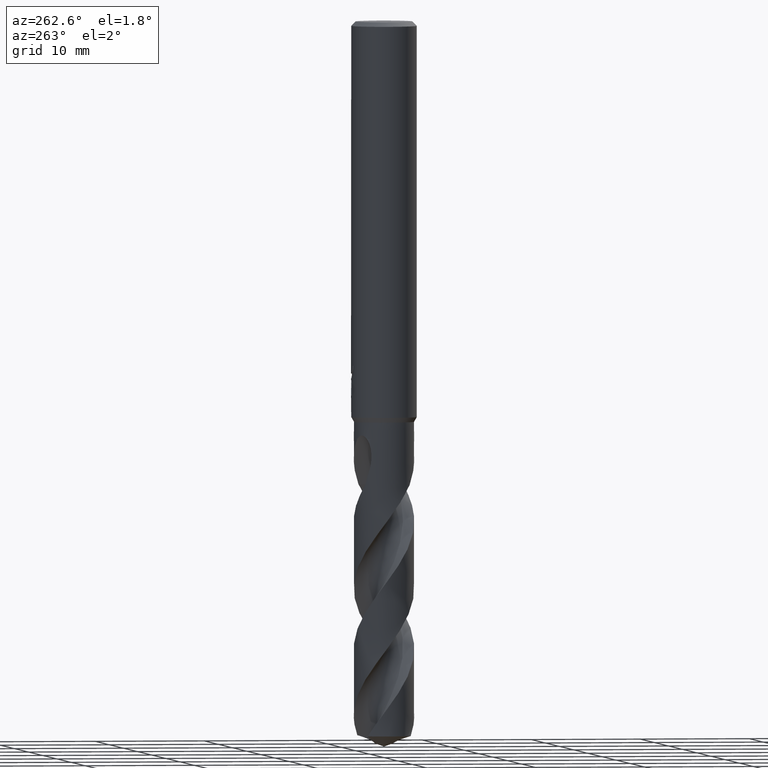
[diagram: clean part render]
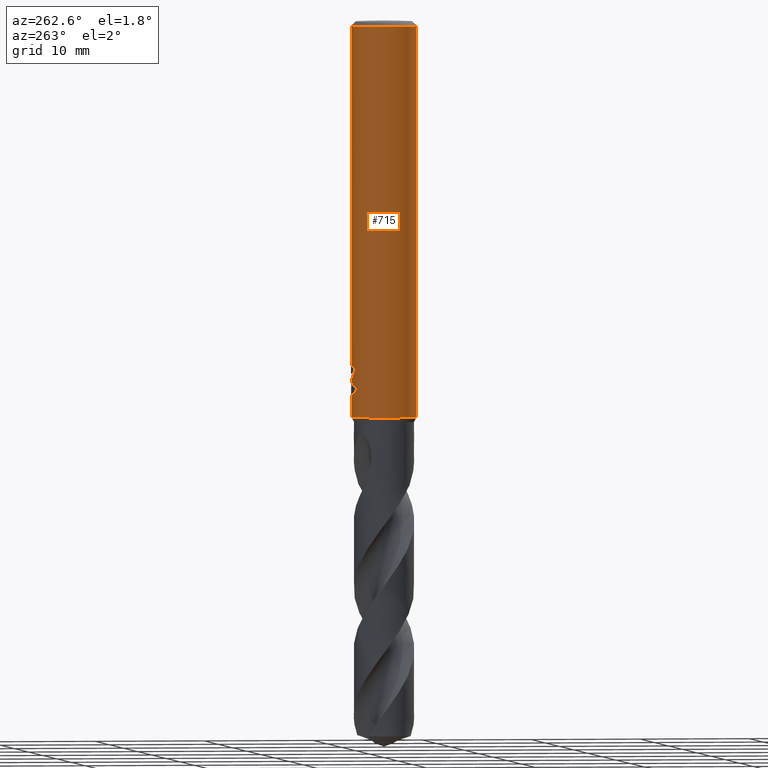
[diagram: same view with one face highlighted and labeled with its STEP entity id]
A machine part, auxiliary view. The second image highlights one B-rep face of the part: STEP entity #715.
In plain terms, the highlighted cylindrical surface (edge-blend (fillet) strip) has radius 3 mm, axis along (-0, -0, 1).
Its self-contained STEP definition (entity closure, byte-faithful):
#281=EDGE_CURVE('',#547,#325,#773,.T.);
#291=VERTEX_POINT('',#784);
#297=EDGE_CURVE('',#291,#531,#790,.T.);
#319=EDGE_CURVE('',#569,#407,#812,.T.);
#321=EDGE_CURVE('',#577,#357,#814,.T.);
#325=VERTEX_POINT('',#818);
#335=EDGE_CURVE('',#357,#547,#828,.T.);
#357=VERTEX_POINT('',#852);
#371=EDGE_CURVE('',#521,#577,#868,.T.);
#373=EDGE_CURVE('',#615,#533,#870,.T.);
#385=EDGE_CURVE('',#615,#407,#883,.T.);
#407=VERTEX_POINT('',#907);
#409=EDGE_CURVE('',#469,#521,#909,.T.);
#469=VERTEX_POINT('',#976);
#495=EDGE_CURVE('',#533,#291,#1005,.T.);
#521=VERTEX_POINT('',#1034);
#531=VERTEX_POINT('',#1047);
#533=VERTEX_POINT('',#1049);
#547=VERTEX_POINT('',#1065);
#569=VERTEX_POINT('',#1089);
#577=VERTEX_POINT('',#1097);
#615=VERTEX_POINT('',#1137);
#655=EDGE_CURVE('',#531,#469,#1182,.T.);
#685=EDGE_CURVE('',#325,#569,#1215,.T.);
#715=ADVANCED_FACE('',(#1248),#1249,.T.);
#773=ELLIPSE('',#1339,3.34478529612858,3.0);
#784=CARTESIAN_POINT('',(0.0,3.0,-0.399999999999999));
#790=LINE('',#1375,#1376);
#812=LINE('',#1572,#1573);
#814=B_SPLINE_CURVE_WITH_KNOTS('',3,(#1576,#1577,#1578,#1579,#1580,#1581,#1582,#1583,#1584,#1585,#1586,#1587,#1588,#1589),.UNSPECIFIED.,.F.,.F.,(4,2,2,2,2,2,4),(3.16026050654945,3.61086409539206,4.06146768423468,4.51207127307729,4.95991823802074,5.40776520296419,5.86282890530594),.UNSPECIFIED.);
#818=CARTESIAN_POINT('',(-1.337052752443,2.68557069115386,-33.3720803908795));
#828=LINE('',#1628,#1629);
#852=CARTESIAN_POINT('',(-2.06254272401587E-016,3.0,-32.5000801551881));
#868=CIRCLE('',#1767,3.0);
#870=LINE('',#1770,#1771);
#883=CIRCLE('',#1806,3.0);
#907=CARTESIAN_POINT('',(0.0,3.0,-36.0));
#909=B_SPLINE_CURVE_WITH_KNOTS('',3,(#1861,#1862,#1863,#1864,#1865,#1866,#1867,#1868,#1869,#1870,#1871,#1872,#1873,#1874,#1875,#1876,#1877,#1878,#1879,#1880,#1881,#1882,#1883,#1884,#1885,#1886,#1887),.UNSPECIFIED.,.F.,.F.,(4,2,3,2,2,2,2,2,2,2,2,2,4),(-0.54422824842136,-0.27211412421068,0.0,0.272114124210678,0.544228248421357,0.817906359646673,1.09158447087199,1.36255924571499,1.63353402055798,1.90530456554772,2.17707511053746,2.4488456555272,2.72061620051693),.UNSPECIFIED.);
#976=CARTESIAN_POINT('',(-0.486378944383045,2.96031003823262,-31.6432837483006));
#1005=CIRCLE('',#2289,3.0);
#1034=CARTESIAN_POINT('',(-0.562333990228013,2.94682549253162,-31.3171221986971));
#1047=CARTESIAN_POINT('',(-1.20768269592175E-015,3.0,-32.0232688117743));
#1049=CARTESIAN_POINT('',(3.67381906146713E-016,-3.0,-0.399999999999999));
#1065=CARTESIAN_POINT('',(-3.67366600472444E-016,3.0,-32.7128911336578));
#1089=CARTESIAN_POINT('',(-2.46407913303377E-016,3.0,-34.0310253601033));
#1097=CARTESIAN_POINT('',(-1.0350734039088,2.81578107254819,-31.3171221986971));
#1137=CARTESIAN_POINT('',(3.67381906146713E-016,-3.0,-36.0));
#1182=B_SPLINE_CURVE_WITH_KNOTS('',3,(#4839,#4840,#4841,#4842,#4843,#4844,#4845,#4846,#4847,#4848,#4849,#4850,#4851,#4852,#4853,#4854,#4855,#4856,#4857,#4858,#4859,#4860,#4861,#4862,#4863,#4864,#4865),.UNSPECIFIED.,.F.,.F.,(4,2,3,2,2,2,2,2,2,2,2,2,4),(-0.54422824842136,-0.27211412421068,0.0,0.272114124210678,0.544228248421357,0.817906359646673,1.09158447087199,1.36255924571499,1.63353402055798,1.90530456554772,2.17707511053746,2.4488456555272,2.72061620051693),.UNSPECIFIED.);
#1215=B_SPLINE_CURVE_WITH_KNOTS('',3,(#4948,#4949,#4950,#4951,#4952,#4953,#4954,#4955,#4956,#4957,#4958,#4959,#4960,#4961,#4962,#4963),.UNSPECIFIED.,.F.,.F.,(4,2,2,2,2,2,2,4),(5.66023402257373,6.29060333517104,6.60504483258975,6.91948633000846,7.23392782742717,7.54836932484587,7.86141901111221,8.17446869737855),.UNSPECIFIED.);
#1248=FACE_OUTER_BOUND('',#5039,.T.);
#1249=CYLINDRICAL_SURFACE('',#5040,3.0);
#1339=AXIS2_PLACEMENT_3D('',#5166,#5167,#5168);
#1375=CARTESIAN_POINT('',(-3.67381906146713E-016,3.0,-18.2));
#1376=VECTOR('',#5182,1.0);
#1572=CARTESIAN_POINT('',(-3.67381906146713E-016,3.0,-18.2));
#1573=VECTOR('',#5189,1.0);
#1576=CARTESIAN_POINT('',(-0.944028754947609,2.84759718180646,-30.87109591768));
#1577=CARTESIAN_POINT('',(-1.00479265183033,2.82745289805341,-31.0168616503562));
#1578=CARTESIAN_POINT('',(-1.03510901790186,2.81576798068631,-31.1761006644519));
#1579=CARTESIAN_POINT('',(-1.03510901790186,2.81576798068631,-31.4765030570137));
#1580=CARTESIAN_POINT('',(-1.00479265183033,2.82745289805341,-31.6357420711094));
#1581=CARTESIAN_POINT('',(-0.88326485806506,2.86774146555976,-31.9272735364618));
#1582=CARTESIAN_POINT('',(-0.792109261194285,2.89554580131596,-32.0596991578702));
#1583=CARTESIAN_POINT('',(-0.582867737485067,2.94478284423827,-32.2682275153448));
#1584=CARTESIAN_POINT('',(-0.450640829386874,2.96956027684007,-32.358826497016));
#1585=CARTESIAN_POINT('',(-0.159819744133953,2.99930375982357,-32.4794282329782));
#1586=CARTESIAN_POINT('',(-0.00114290335869099,3.00371168811663,-32.5093686300866));
#1587=CARTESIAN_POINT('',(0.299461057962613,2.98886806232847,-32.5093686300866));
#1588=CARTESIAN_POINT('',(0.459264276215476,2.96836791045541,-32.4785566268234));
#1589=CARTESIAN_POINT('',(0.604975334200916,2.93836771779988,-32.4175314011172));
#1628=CARTESIAN_POINT('',(-3.67381906146713E-016,3.0,-18.2));
#1629=VECTOR('',#5192,1.0);
#1767=AXIS2_PLACEMENT_3D('',#5242,#5243,#5244);
#1770=CARTESIAN_POINT('',(3.67381906146713E-016,-3.0,-18.2));
#1771=VECTOR('',#5245,1.0);
#1806=AXIS2_PLACEMENT_3D('',#5275,#5276,#5277);
#1861=CARTESIAN_POINT('',(0.665621182276714,2.92522622060321,-30.8140957881762));
#1862=CARTESIAN_POINT('',(0.728850563417096,2.91083867849353,-30.877518087557));
#1863=CARTESIAN_POINT('',(0.783900459387161,2.89602337967411,-30.9578702196133));
#1864=CARTESIAN_POINT('',(0.857188692916628,2.87518328740958,-31.1345580124299));
#1865=CARTESIAN_POINT('',(0.875400981188567,2.86943777108584,-31.2309373045166));
#1866=CARTESIAN_POINT('',(0.875400981188567,2.86943777108584,-31.3216420125868));
#1867=CARTESIAN_POINT('',(0.875400981188567,2.86943777108584,-31.412346720657));
#1868=CARTESIAN_POINT('',(0.857188692916629,2.87518328740958,-31.5087260127437));
#1869=CARTESIAN_POINT('',(0.783900459387161,2.89602337967411,-31.6854138055602));
#1870=CARTESIAN_POINT('',(0.728850563417096,2.91083867849353,-31.7657659376165));
#1871=CARTESIAN_POINT('',(0.60202838769231,2.93969645569731,-31.8929750586276));
#1872=CARTESIAN_POINT('',(0.5214778595293,2.95568533572518,-31.9483797636259));
#1873=CARTESIAN_POINT('',(0.34429909105015,2.98152194310932,-32.0221641076746));
#1874=CARTESIAN_POINT('',(0.247628172090375,2.99115403786358,-32.0405166027747));
#1875=CARTESIAN_POINT('',(0.0663244946631877,3.00062654348629,-32.0405166027747));
#1876=CARTESIAN_POINT('',(-0.0299285908853379,3.00115720326599,-32.0224875186921));
#1877=CARTESIAN_POINT('',(-0.206881310600538,2.99416773126077,-31.949244373347));
#1878=CARTESIAN_POINT('',(-0.287593937381961,2.98687212067831,-31.8940404490632));
#1879=CARTESIAN_POINT('',(-0.415200117492864,2.97182576996222,-31.7666805419979));
#1880=CARTESIAN_POINT('',(-0.470604049431396,2.96309385107775,-31.6859121102136));
#1881=CARTESIAN_POINT('',(-0.544183869965539,2.95046729924835,-31.5086992019516));
#1882=CARTESIAN_POINT('',(-0.562348199187247,2.94682278104247,-31.41223219425));
#1883=CARTESIAN_POINT('',(-0.562348199187247,2.94682278104247,-31.2310518309235));
#1884=CARTESIAN_POINT('',(-0.54418386996554,2.95046729924835,-31.134584823222));
#1885=CARTESIAN_POINT('',(-0.4706040494314,2.96309385107775,-30.95737191496));
#1886=CARTESIAN_POINT('',(-0.415200117492863,2.97182576996222,-30.8766034831756));
#1887=CARTESIAN_POINT('',(-0.351303479704285,2.97935997575782,-30.812830162452));
#2289=AXIS2_PLACEMENT_3D('',#5421,#5422,#5423);
#4839=CARTESIAN_POINT('',(0.665621182276714,2.92522622060321,-30.8140957881762));
#4840=CARTESIAN_POINT('',(0.728850563417096,2.91083867849353,-30.877518087557));
#4841=CARTESIAN_POINT('',(0.783900459387161,2.89602337967411,-30.9578702196133));
#4842=CARTESIAN_POINT('',(0.857188692916628,2.87518328740958,-31.1345580124299));
#4843=CARTESIAN_POINT('',(0.875400981188567,2.86943777108584,-31.2309373045166));
#4844=CARTESIAN_POINT('',(0.875400981188567,2.86943777108584,-31.3216420125868));
#4845=CARTESIAN_POINT('',(0.875400981188567,2.86943777108584,-31.412346720657));
#4846=CARTESIAN_POINT('',(0.857188692916629,2.87518328740958,-31.5087260127437));
#4847=CARTESIAN_POINT('',(0.783900459387161,2.89602337967411,-31.6854138055602));
#4848=CARTESIAN_POINT('',(0.728850563417096,2.91083867849353,-31.7657659376165));
#4849=CARTESIAN_POINT('',(0.60202838769231,2.93969645569731,-31.8929750586276));
#4850=CARTESIAN_POINT('',(0.5214778595293,2.95568533572518,-31.9483797636259));
#4851=CARTESIAN_POINT('',(0.34429909105015,2.98152194310932,-32.0221641076746));
#4852=CARTESIAN_POINT('',(0.247628172090375,2.99115403786358,-32.0405166027747));
#4853=CARTESIAN_POINT('',(0.0663244946631877,3.00062654348629,-32.0405166027747));
#4854=CARTESIAN_POINT('',(-0.0299285908853379,3.00115720326599,-32.0224875186921));
#4855=CARTESIAN_POINT('',(-0.206881310600538,2.99416773126077,-31.949244373347));
#4856=CARTESIAN_POINT('',(-0.287593937381961,2.98687212067831,-31.8940404490632));
#4857=CARTESIAN_POINT('',(-0.415200117492864,2.97182576996222,-31.7666805419979));
#4858=CARTESIAN_POINT('',(-0.470604049431396,2.96309385107775,-31.6859121102136));
#4859=CARTESIAN_POINT('',(-0.544183869965539,2.95046729924835,-31.5086992019516));
#4860=CARTESIAN_POINT('',(-0.562348199187247,2.94682278104247,-31.41223219425));
#4861=CARTESIAN_POINT('',(-0.562348199187247,2.94682278104247,-31.2310518309235));
#4862=CARTESIAN_POINT('',(-0.54418386996554,2.95046729924835,-31.134584823222));
#4863=CARTESIAN_POINT('',(-0.4706040494314,2.96309385107775,-30.95737191496));
#4864=CARTESIAN_POINT('',(-0.415200117492863,2.97182576996222,-30.8766034831756));
#4865=CARTESIAN_POINT('',(-0.351303479704285,2.97935997575782,-30.812830162452));
#4948=CARTESIAN_POINT('',(-1.53050642192579,2.58022287650581,-33.0319811255889));
#4949=CARTESIAN_POINT('',(-1.44691631248335,2.62980577312329,-33.2314887010961));
#4950=CARTESIAN_POINT('',(-1.32276760444366,2.69707077181617,-33.4113258593841));
#4951=CARTESIAN_POINT('',(-1.10973155101076,2.78826898930335,-33.6245951706909));
#4952=CARTESIAN_POINT('',(-1.02948996220254,2.81934349084513,-33.6916117853674));
#4953=CARTESIAN_POINT('',(-0.853932698223484,2.87738531454781,-33.8105216600777));
#4954=CARTESIAN_POINT('',(-0.758609991487907,2.90431263574779,-33.8624240602539));
#4955=CARTESIAN_POINT('',(-0.558469552260235,2.94934446690523,-33.9464055954533));
#4956=CARTESIAN_POINT('',(-0.453457041446381,2.96746268462387,-33.9785511641911));
#4957=CARTESIAN_POINT('',(-0.240810292537893,2.99223469602914,-34.0209924679526));
#4958=CARTESIAN_POINT('',(-0.133171317626829,2.99887501234033,-34.0312723335086));
#4959=CARTESIAN_POINT('',(0.0759830626177195,3.00085245803086,-34.0312723335086));
#4960=CARTESIAN_POINT('',(0.183273473896684,2.99629272230549,-34.0210815541729));
#4961=CARTESIAN_POINT('',(0.39543915272815,2.97573303917486,-33.9788816901513));
#4962=CARTESIAN_POINT('',(0.500318639064909,2.95974677710468,-33.9468871509919));
#4963=CARTESIAN_POINT('',(0.600330982089903,2.93932011049205,-33.9050368602192));
#5039=EDGE_LOOP('',(#5698,#5699,#5700,#5701,#5702,#5703,#5704,#5705,#5706,#5707,#5708,#5709));
#5040=AXIS2_PLACEMENT_3D('',#5710,#5711,#5712);
#5166=CARTESIAN_POINT('',(0.0,0.0,-32.7128911336578));
#5167=DIRECTION('',(-0.442195774284071,0.0,0.896918556617774));
#5168=DIRECTION('',(0.896918556617774,-0.0,0.442195774284071));
#5182=DIRECTION('',(0.0,0.0,-1.0));
#5189=DIRECTION('',(0.0,0.0,-1.0));
#5192=DIRECTION('',(0.0,0.0,-1.0));
#5242=CARTESIAN_POINT('',(0.0,0.0,-31.3171221986971));
#5243=DIRECTION('',(0.0,-0.0,1.0));
#5244=DIRECTION('',(0.0,1.0,0.0));
#5245=DIRECTION('',(-0.0,-0.0,1.0));
#5275=CARTESIAN_POINT('',(0.0,0.0,-36.0));
#5276=DIRECTION('',(0.0,0.0,-1.0));
#5277=DIRECTION('',(0.0,1.0,0.0));
#5421=CARTESIAN_POINT('',(0.0,0.0,-0.399999999999999));
#5422=DIRECTION('',(0.0,0.0,-1.0));
#5423=DIRECTION('',(0.0,1.0,0.0));
#5698=ORIENTED_EDGE('',*,*,#297,.T.);
#5699=ORIENTED_EDGE('',*,*,#655,.T.);
#5700=ORIENTED_EDGE('',*,*,#409,.T.);
#5701=ORIENTED_EDGE('',*,*,#371,.T.);
#5702=ORIENTED_EDGE('',*,*,#321,.T.);
#5703=ORIENTED_EDGE('',*,*,#335,.T.);
#5704=ORIENTED_EDGE('',*,*,#281,.T.);
#5705=ORIENTED_EDGE('',*,*,#685,.T.);
#5706=ORIENTED_EDGE('',*,*,#319,.T.);
#5707=ORIENTED_EDGE('',*,*,#385,.F.);
#5708=ORIENTED_EDGE('',*,*,#373,.T.);
#5709=ORIENTED_EDGE('',*,*,#495,.T.);
#5710=CARTESIAN_POINT('',(0.0,0.0,-18.2));
#5711=DIRECTION('',(-0.0,-0.0,1.0));
#5712=DIRECTION('',(0.0,1.0,0.0));